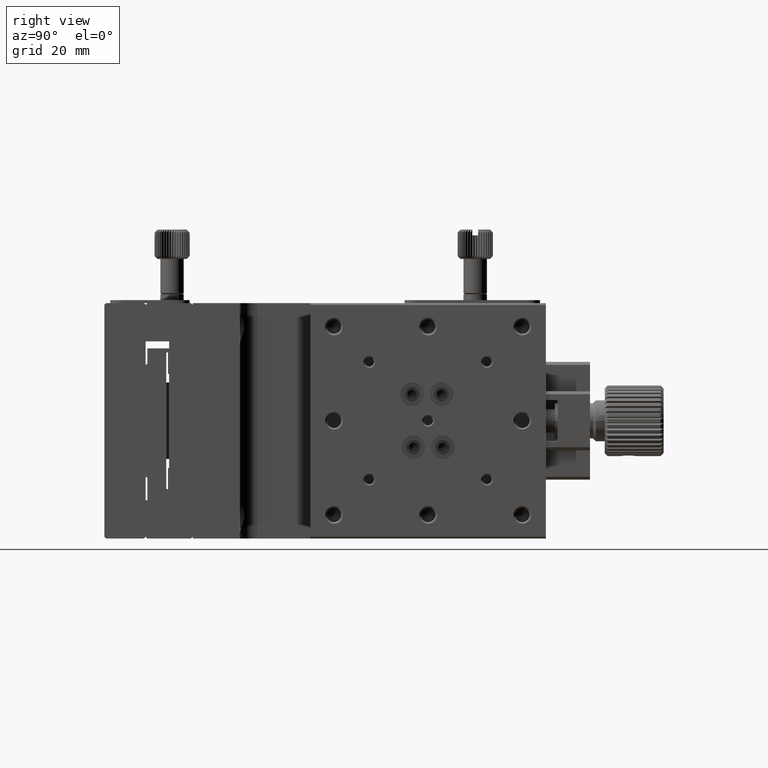
[diagram: clean part render]
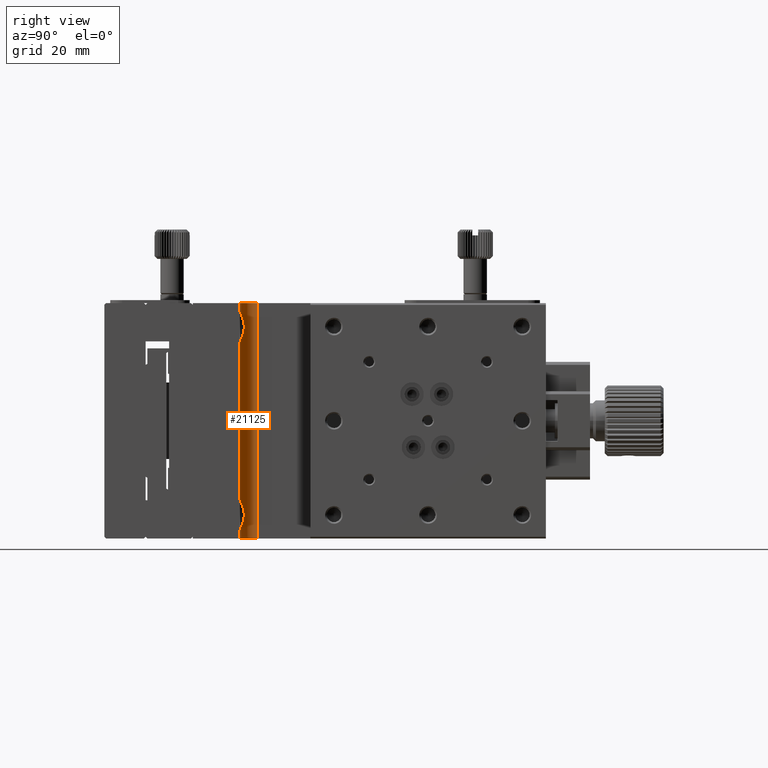
[diagram: same view with one face highlighted and labeled with its STEP entity id]
A machine part, right view. The second image highlights one B-rep face of the part: STEP entity #21125.
In plain terms, the highlighted cylindrical surface (edge-blend (fillet) strip) has radius 3 mm, axis along (0, 0, 1).
Its self-contained STEP definition (entity closure, byte-faithful):
#195 = CARTESIAN_POINT ( 'NONE',  ( 16.99998641230205720, 8.763944175706591011, -35.84223658976920746 ) ) ;
#365 = CARTESIAN_POINT ( 'NONE',  ( 17.37552597993563097, 8.470054543796710078, -37.48430663253346040 ) ) ;
#1024 = VERTEX_POINT ( 'NONE', #25287 ) ;
#1222 = VERTEX_POINT ( 'NONE', #27023 ) ;
#1328 = CARTESIAN_POINT ( 'NONE',  ( 19.00000000000000000, 8.000000000000000000, -6.828427124746188071 ) ) ;
#1409 = CARTESIAN_POINT ( 'NONE',  ( 19.00000000000000000, 8.000000000000000000, -40.00000000000000000 ) ) ;
#1588 = LINE ( 'NONE', #1409, #24106 ) ;
#1669 = CARTESIAN_POINT ( 'NONE',  ( 18.42871268474309687, 8.051621716432869391, -1.439618866895969518 ) ) ;
#1837 = CARTESIAN_POINT ( 'NONE',  ( 18.29922425358108384, 8.080230229577598067, -1.523908788508690160 ) ) ;
#1881 = CIRCLE ( 'NONE', #17447, 2.999999999999999112 ) ;
#1976 = CARTESIAN_POINT ( 'NONE',  ( 17.72365042242730482, 8.277781858656842573, -37.97718554062594620 ) ) ;
#2185 = CARTESIAN_POINT ( 'NONE',  ( 18.05486831225842792, 8.149935395141318040, -1.710867294241118941 ) ) ;
#2582 = EDGE_CURVE ( 'NONE', #19769, #1024, #21351, .T. ) ;
#2874 = CARTESIAN_POINT ( 'NONE',  ( 18.42871268474310753, 8.051621716432871168, -33.43961886689596952 ) ) ;
#2965 = DIRECTION ( 'NONE',  ( 1.000000000000000000, 0.000000000000000000, 0.000000000000000000 ) ) ;
#4101 = DIRECTION ( 'NONE',  ( 0.000000000000000000, 0.000000000000000000, 1.000000000000000000 ) ) ;
#4670 = CARTESIAN_POINT ( 'NONE',  ( 18.42561627553536496, 8.044389185550455679, -38.57241570454696955 ) ) ;
#4702 = CARTESIAN_POINT ( 'NONE',  ( 19.00000000000000000, 8.000000000000000000, -1.171572875253810375 ) ) ;
#4810 = ORIENTED_EDGE ( 'NONE', *, *, #20139, .F. ) ;
#4875 = CARTESIAN_POINT ( 'NONE',  ( 17.37552597993563097, 8.470054543796711854, -5.484306632533454184 ) ) ;
#4886 = ORIENTED_EDGE ( 'NONE', *, *, #26185, .F. ) ;
#5206 = CARTESIAN_POINT ( 'NONE',  ( 18.29922425358108029, 8.080230229577596290, -33.52390878850868461 ) ) ;
#5391 = CARTESIAN_POINT ( 'NONE',  ( 17.93977806397518293, 8.191294900948358659, -33.81405974254208502 ) ) ;
#6224 = ORIENTED_EDGE ( 'NONE', *, *, #21588, .F. ) ;
#6537 = ORIENTED_EDGE ( 'NONE', *, *, #21736, .T. ) ;
#7112 = VERTEX_POINT ( 'NONE', #26520 ) ;
#7627 = DIRECTION ( 'NONE',  ( 0.000000000000000000, 0.000000000000000000, 1.000000000000000000 ) ) ;
#7770 = CARTESIAN_POINT ( 'NONE',  ( 17.09793119445219034, 8.679287851068016479, -3.224505353500955795 ) ) ;
#7902 = CARTESIAN_POINT ( 'NONE',  ( 19.00000000000000000, 11.00000000000000000, -40.00000000000000000 ) ) ;
#8288 = CARTESIAN_POINT ( 'NONE',  ( 18.70366764204017329, 8.011440006757498011, -33.29001516765340085 ) ) ;
#8570 = DIRECTION ( 'NONE',  ( 1.000000000000000000, 0.000000000000000000, 0.000000000000000000 ) ) ;
#9282 = CIRCLE ( 'NONE', #13892, 2.999999999999999112 ) ;
#9932 = CARTESIAN_POINT ( 'NONE',  ( 19.00000000000000000, 8.000000000000000000, -38.82842712474619162 ) ) ;
#9971 = CARTESIAN_POINT ( 'NONE',  ( 17.01237562666092629, 8.752693045605873579, -3.686152070195982233 ) ) ;
#10195 = VERTEX_POINT ( 'NONE', #16568 ) ;
#10419 = CARTESIAN_POINT ( 'NONE',  ( 16.00000000000000000, 11.00000000000000000, -40.00000000000000000 ) ) ;
#10668 = CARTESIAN_POINT ( 'NONE',  ( 17.01281069748860020, 8.752306015370145076, -4.317781867066538659 ) ) ;
#10803 = DIRECTION ( 'NONE',  ( -0.000000000000000000, -0.000000000000000000, -1.000000000000000000 ) ) ;
#10829 = CARTESIAN_POINT ( 'NONE',  ( 19.00000000000000355, 8.000000000000000000, -33.17157287525380838 ) ) ;
#11000 = CARTESIAN_POINT ( 'NONE',  ( 18.84970728491996894, 7.999999999999996447, -33.22470937425183024 ) ) ;
#11366 = CARTESIAN_POINT ( 'NONE',  ( 17.01237562666092629, 8.752693045605873579, -35.68615207019598046 ) ) ;
#11666 = AXIS2_PLACEMENT_3D ( 'NONE', #19929, #17226, #8570 ) ;
#12340 = CARTESIAN_POINT ( 'NONE',  ( 18.69913493667851867, 8.000000000000000000, -6.722055261497818179 ) ) ;
#12397 = ORIENTED_EDGE ( 'NONE', *, *, #24568, .F. ) ;
#12681 = CARTESIAN_POINT ( 'NONE',  ( 17.63519898629306937, 8.326594350190559268, -2.147904763027979946 ) ) ;
#12776 = DIRECTION ( 'NONE',  ( 0.000000000000000000, 0.000000000000000000, -1.000000000000000000 ) ) ;
#12851 = CARTESIAN_POINT ( 'NONE',  ( 17.06181432683357357, 8.709915750700565340, -4.625579886245046346 ) ) ;
#13195 = CARTESIAN_POINT ( 'NONE',  ( 17.72365042242730837, 8.277781858656844349, -5.977185540625937321 ) ) ;
#13524 = CARTESIAN_POINT ( 'NONE',  ( 17.00001360991518595, 8.763919849422126873, -36.15827975008129869 ) ) ;
#13892 = AXIS2_PLACEMENT_3D ( 'NONE', #19387, #22466, #2965 ) ;
#14251 = CARTESIAN_POINT ( 'NONE',  ( 17.09794559834611505, 8.679255665987703594, -36.77588799055331492 ) ) ;
#14853 = LINE ( 'NONE', #28682, #22939 ) ;
#14882 = FACE_OUTER_BOUND ( 'NONE', #15798, .T. ) ;
#14986 = VERTEX_POINT ( 'NONE', #18116 ) ;
#15398 = CARTESIAN_POINT ( 'NONE',  ( 17.93308513327728448, 8.184463707108886155, -6.196330941042267781 ) ) ;
#15567 = CARTESIAN_POINT ( 'NONE',  ( 17.93977806397517583, 8.191294900948356883, -1.814059742542077247 ) ) ;
#15706 = CARTESIAN_POINT ( 'NONE',  ( 17.93308513327729159, 8.184463707108884378, -38.19633094104226245 ) ) ;
#15734 = EDGE_CURVE ( 'NONE', #1222, #14986, #9282, .T. ) ;
#15739 = CARTESIAN_POINT ( 'NONE',  ( 16.00000000000000000, 11.00000000000000000, -40.00000000000000000 ) ) ;
#15798 = EDGE_LOOP ( 'NONE', ( #20978, #6537, #6224, #33219, #4886, #32420, #12397, #4810 ) ) ;
#16227 = CARTESIAN_POINT ( 'NONE',  ( 17.38396565619781597, 8.471152798591475630, -34.52382072893628617 ) ) ;
#16409 = CARTESIAN_POINT ( 'NONE',  ( 17.24071141241682881, 8.566984482498359199, -37.21738005019282269 ) ) ;
#16568 = CARTESIAN_POINT ( 'NONE',  ( 19.00000000000000000, 8.000000000000000000, -6.828427124746188071 ) ) ;
#17226 = DIRECTION ( 'NONE',  ( 0.000000000000000000, 0.000000000000000000, 1.000000000000000000 ) ) ;
#17447 = AXIS2_PLACEMENT_3D ( 'NONE', #7902, #10803, #27363 ) ;
#18116 = CARTESIAN_POINT ( 'NONE',  ( 16.00000000000000000, 11.00000000000000000, 0.000000000000000000 ) ) ;
#18719 = B_SPLINE_CURVE_WITH_KNOTS ( 'NONE', 3,
 ( #9932, #29347, #4670, #15706, #1976, #365, #16409, #14251, #24514, #25236, #13524, #195, #11366, #27900, #24697, #35459, #30583, #16227, #27738, #19292, #32559, #5391, #29878, #5206, #2874, #8288, #11000, #10829 ),
 .UNSPECIFIED., .F., .F.,
 ( 4, 2, 2, 2, 2, 2, 2, 2, 2, 2, 2, 2, 2, 4 ),
 ( 3.469446951953614189E-18, 0.0009401447641671105198, 0.001880289528334217570, 0.002820434292501324512, 0.003290506674584886548, 0.003760579056668449018, 0.004230651438752011488, 0.004700723820835574392, 0.005170796202919137295, 0.005640868585002700199, 0.006110940967086262235, 0.006581013349169825138, 0.007051085731253388042, 0.007521158113336950078 ),
 .UNSPECIFIED. ) ;
#19292 = CARTESIAN_POINT ( 'NONE',  ( 17.63519898629308003, 8.326594350190562821, -34.14790476302798794 ) ) ;
#19387 = CARTESIAN_POINT ( 'NONE',  ( 19.00000000000000000, 11.00000000000000000, 0.000000000000000000 ) ) ;
#19769 = VERTEX_POINT ( 'NONE', #31226 ) ;
#19929 = CARTESIAN_POINT ( 'NONE',  ( 19.00000000000000000, 11.00000000000000000, -40.00000000000000000 ) ) ;
#20139 = EDGE_CURVE ( 'NONE', #1024, #7112, #18719, .T. ) ;
#20978 = ORIENTED_EDGE ( 'NONE', *, *, #2582, .F. ) ;
#20981 = CARTESIAN_POINT ( 'NONE',  ( 17.00001360991518595, 8.763919849422126873, -4.158279750081295134 ) ) ;
#21125 = ADVANCED_FACE ( 'NONE', ( #14882 ), #25860, .F. ) ;
#21151 = CARTESIAN_POINT ( 'NONE',  ( 17.24912044884800366, 8.562571854232894353, -2.793599310624962584 ) ) ;
#21320 = CARTESIAN_POINT ( 'NONE',  ( 17.06112599086389991, 8.710500759236580848, -3.377569700579849510 ) ) ;
#21351 = LINE ( 'NONE', #32262, #34917 ) ;
#21588 = EDGE_CURVE ( 'NONE', #14986, #29613, #26980, .T. ) ;
#21681 = CARTESIAN_POINT ( 'NONE',  ( 16.99998641230205720, 8.763944175706591011, -3.842236589769187471 ) ) ;
#21736 = EDGE_CURVE ( 'NONE', #19769, #29613, #1881, .T. ) ;
#22466 = DIRECTION ( 'NONE',  ( -0.000000000000000000, -0.000000000000000000, -1.000000000000000000 ) ) ;
#22939 = VECTOR ( 'NONE', #25833, 1000.000000000000000 ) ;
#23669 = CARTESIAN_POINT ( 'NONE',  ( 18.70366764204015908, 8.011440006757496235, -1.290015167653405515 ) ) ;
#24106 = VECTOR ( 'NONE', #4101, 1000.000000000000000 ) ;
#24193 = CARTESIAN_POINT ( 'NONE',  ( 17.73048646079679358, 8.279479781209726497, -2.032220151991990686 ) ) ;
#24369 = CARTESIAN_POINT ( 'NONE',  ( 17.19185207732865450, 8.605386939612609254, -2.933369537619058498 ) ) ;
#24514 = CARTESIAN_POINT ( 'NONE',  ( 17.06181432683357357, 8.709915750700565340, -36.62557988624503480 ) ) ;
#24568 = EDGE_CURVE ( 'NONE', #7112, #10195, #14853, .T. ) ;
#24697 = CARTESIAN_POINT ( 'NONE',  ( 17.09793119445218679, 8.679287851068018256, -35.22450535350095890 ) ) ;
#24900 = VECTOR ( 'NONE', #12776, 1000.000000000000000 ) ;
#25236 = CARTESIAN_POINT ( 'NONE',  ( 17.01281069748860375, 8.752306015370146852, -36.31778186706653599 ) ) ;
#25287 = CARTESIAN_POINT ( 'NONE',  ( 19.00000000000000000, 8.000000000000000000, -38.82842712474619162 ) ) ;
#25833 = DIRECTION ( 'NONE',  ( 0.000000000000000000, 0.000000000000000000, 1.000000000000000000 ) ) ;
#25860 = CYLINDRICAL_SURFACE ( 'NONE', #11666, 2.999999999999999112 ) ;
#26185 = EDGE_CURVE ( 'NONE', #32051, #1222, #1588, .T. ) ;
#26365 = CARTESIAN_POINT ( 'NONE',  ( 17.24071141241683236, 8.566984482498357423, -5.217380050192819141 ) ) ;
#26520 = CARTESIAN_POINT ( 'NONE',  ( 19.00000000000000355, 8.000000000000000000, -33.17157287525380838 ) ) ;
#26980 = LINE ( 'NONE', #10419, #24900 ) ;
#27023 = CARTESIAN_POINT ( 'NONE',  ( 19.00000000000000000, 8.000000000000000000, 0.000000000000000000 ) ) ;
#27054 = CARTESIAN_POINT ( 'NONE',  ( 17.46210129923304777, 8.422278688137947000, -2.393260822071864968 ) ) ;
#27363 = DIRECTION ( 'NONE',  ( 1.000000000000000000, 0.000000000000000000, 0.000000000000000000 ) ) ;
#27738 = CARTESIAN_POINT ( 'NONE',  ( 17.46210129923305487, 8.422278688137950553, -34.39326082207188762 ) ) ;
#27900 = CARTESIAN_POINT ( 'NONE',  ( 17.06112599086390347, 8.710500759236587953, -35.37756970057985484 ) ) ;
#28682 = CARTESIAN_POINT ( 'NONE',  ( 19.00000000000000000, 8.000000000000000000, -40.00000000000000000 ) ) ;
#29347 = CARTESIAN_POINT ( 'NONE',  ( 18.69913493667851867, 7.999999999999998224, -38.72205526149781463 ) ) ;
#29613 = VERTEX_POINT ( 'NONE', #15739 ) ;
#29878 = CARTESIAN_POINT ( 'NONE',  ( 18.05486831225843147, 8.149935395141321592, -33.71086729424113315 ) ) ;
#30583 = CARTESIAN_POINT ( 'NONE',  ( 17.24912044884800011, 8.562571854232894353, -34.79359931062496969 ) ) ;
#31226 = CARTESIAN_POINT ( 'NONE',  ( 19.00000000000000000, 8.000000000000000000, -40.00000000000000000 ) ) ;
#31890 = CARTESIAN_POINT ( 'NONE',  ( 17.38396565619781242, 8.471152798591472077, -2.523820728936264413 ) ) ;
#32051 = VERTEX_POINT ( 'NONE', #33536 ) ;
#32209 = EDGE_CURVE ( 'NONE', #10195, #32051, #32603, .T. ) ;
#32262 = CARTESIAN_POINT ( 'NONE',  ( 19.00000000000000000, 8.000000000000000000, -40.00000000000000000 ) ) ;
#32409 = CARTESIAN_POINT ( 'NONE',  ( 17.09794559834611860, 8.679255665987707147, -4.775887990553327356 ) ) ;
#32420 = ORIENTED_EDGE ( 'NONE', *, *, #32209, .F. ) ;
#32559 = CARTESIAN_POINT ( 'NONE',  ( 17.73048646079679713, 8.279479781209726497, -34.03222015199200001 ) ) ;
#32603 = B_SPLINE_CURVE_WITH_KNOTS ( 'NONE', 3,
 ( #1328, #12340, #34601, #15398, #13195, #4875, #26365, #32409, #12851, #10668, #20981, #21681, #9971, #21320, #7770, #24369, #21151, #31890, #27054, #12681, #24193, #15567, #2185, #1837, #1669, #23669, #34953, #4702 ),
 .UNSPECIFIED., .F., .F.,
 ( 4, 2, 2, 2, 2, 2, 2, 2, 2, 2, 2, 2, 2, 4 ),
 ( 3.576224061345498009E-18, 0.0009401447641671217955, 0.001880289528334239905, 0.002820434292501358339, 0.003290506674584919074, 0.003760579056668479810, 0.004230651438752038376, 0.004700723820835597810, 0.005170796202919157245, 0.005640868585002715811, 0.006110940967086274378, 0.006581013349169832945, 0.007051085731253390644, 0.007521158113336949211 ),
 .UNSPECIFIED. ) ;
#33219 = ORIENTED_EDGE ( 'NONE', *, *, #15734, .F. ) ;
#33536 = CARTESIAN_POINT ( 'NONE',  ( 19.00000000000000000, 8.000000000000000000, -1.171572875253810375 ) ) ;
#34601 = CARTESIAN_POINT ( 'NONE',  ( 18.42561627553536141, 8.044389185550452126, -6.572415704546958004 ) ) ;
#34917 = VECTOR ( 'NONE', #7627, 1000.000000000000000 ) ;
#34953 = CARTESIAN_POINT ( 'NONE',  ( 18.84970728491995473, 7.999999999999996447, -1.224709374251824689 ) ) ;
#35459 = CARTESIAN_POINT ( 'NONE',  ( 17.19185207732865450, 8.605386939612605701, -34.93336953761904340 ) ) ;